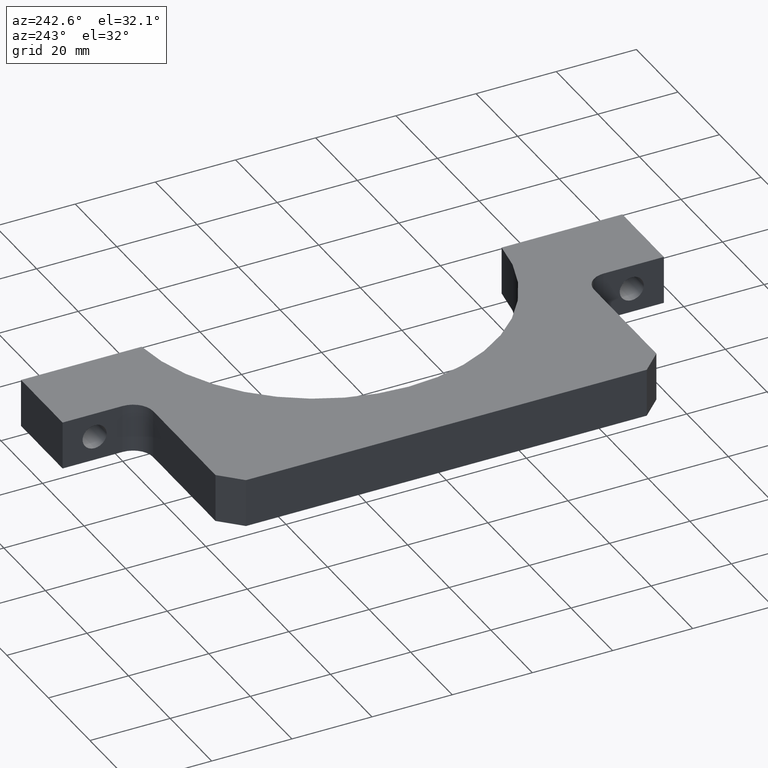
[diagram: clean part render]
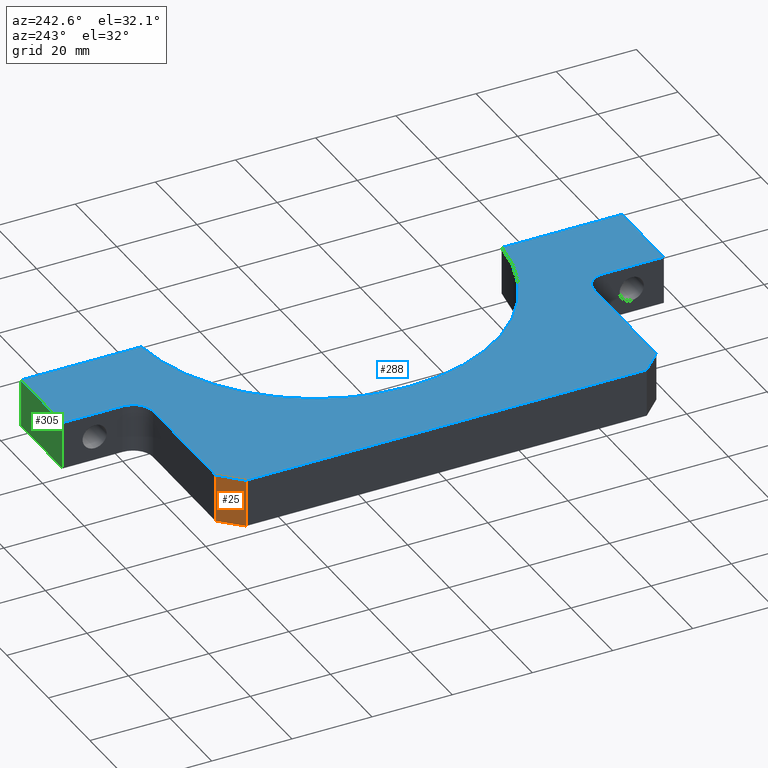
[diagram: same view with three faces highlighted in distinct colors, each labeled with its STEP entity id]
A machine part, auxiliary view with three faces highlighted in distinct colors.
Their STEP definitions:

[orange] entity #25 — the highlighted planar face has unit normal (0.7071, -0.7071, 0).
#7 = DIRECTION ( 'NONE',  ( 0.0000000000000000000, 0.0000000000000000000, -1.000000000000000000 ) ) ;
#16 = DIRECTION ( 'NONE',  ( 0.7071067811865455700, -0.7071067811865495700, 0.0000000000000000000 ) ) ;
#18 = CARTESIAN_POINT ( 'NONE',  ( 5.000000000000019500, 55.00000000000000700, 6.000000000000000000 ) ) ;
#25 = ADVANCED_FACE ( 'NONE', ( #326 ), #152, .F. ) ;
#40 = CARTESIAN_POINT ( 'NONE',  ( 5.000000000000022200, 55.00000000000000700, 6.000000000000000000 ) ) ;
#54 = CARTESIAN_POINT ( 'NONE',  ( 5.000000000000019500, 55.00000000000000700, -6.000000000000000000 ) ) ;
#61 = CARTESIAN_POINT ( 'NONE',  ( 0.0000000000000000000, 50.00000000000001400, 6.000000000000000000 ) ) ;
#129 = LINE ( 'NONE', #18, #148 ) ;
#148 = VECTOR ( 'NONE', #203, 1000.000000000000000 ) ;
#152 = PLANE ( 'NONE',  #434 ) ;
#174 = VECTOR ( 'NONE', #511, 1000.000000000000100 ) ;
#176 = LINE ( 'NONE', #517, #174 ) ;
#194 = VECTOR ( 'NONE', #298, 1000.000000000000100 ) ;
#196 = LINE ( 'NONE', #661, #194 ) ;
#203 = DIRECTION ( 'NONE',  ( 0.0000000000000000000, 0.0000000000000000000, 1.000000000000000000 ) ) ;
#252 = EDGE_CURVE ( 'NONE', #356, #386, #301, .T. ) ;
#295 = VECTOR ( 'NONE', #715, 1000.000000000000000 ) ;
#298 = DIRECTION ( 'NONE',  ( -0.7071067811865495700, -0.7071067811865455700, 0.0000000000000000000 ) ) ;
#301 = LINE ( 'NONE', #705, #295 ) ;
#326 = FACE_OUTER_BOUND ( 'NONE', #609, .T. ) ;
#356 = VERTEX_POINT ( 'NONE', #616 ) ;
#361 = ORIENTED_EDGE ( 'NONE', *, *, #536, .F. ) ;
#386 = VERTEX_POINT ( 'NONE', #500 ) ;
#395 = ORIENTED_EDGE ( 'NONE', *, *, #252, .F. ) ;
#434 = AXIS2_PLACEMENT_3D ( 'NONE', #61, #16, #7 ) ;
#453 = ORIENTED_EDGE ( 'NONE', *, *, #571, .F. ) ;
#500 = CARTESIAN_POINT ( 'NONE',  ( -6.938893903907230000E-015, 49.99999999999999300, -6.000000000000000000 ) ) ;
#511 = DIRECTION ( 'NONE',  ( 0.7071067811865495700, 0.7071067811865455700, -0.0000000000000000000 ) ) ;
#517 = CARTESIAN_POINT ( 'NONE',  ( 0.0000000000000000000, 50.00000000000001400, -6.000000000000000000 ) ) ;
#536 = EDGE_CURVE ( 'NONE', #643, #356, #196, .T. ) ;
#571 = EDGE_CURVE ( 'NONE', #386, #670, #176, .T. ) ;
#592 = ORIENTED_EDGE ( 'NONE', *, *, #684, .F. ) ;
#609 = EDGE_LOOP ( 'NONE', ( #361, #592, #453, #395 ) ) ;
#616 = CARTESIAN_POINT ( 'NONE',  ( -6.071532165918824800E-015, 49.99999999999999300, 6.000000000000000000 ) ) ;
#643 = VERTEX_POINT ( 'NONE', #40 ) ;
#661 = CARTESIAN_POINT ( 'NONE',  ( 6.500000000000172300, 56.50000000000014900, 6.000000000000000000 ) ) ;
#670 = VERTEX_POINT ( 'NONE', #54 ) ;
#684 = EDGE_CURVE ( 'NONE', #670, #643, #129, .T. ) ;
#705 = CARTESIAN_POINT ( 'NONE',  ( 0.0000000000000000000, 50.00000000000001400, 6.000000000000000000 ) ) ;
#715 = DIRECTION ( 'NONE',  ( 0.0000000000000000000, 0.0000000000000000000, -1.000000000000000000 ) ) ;

[blue] entity #288 — the highlighted planar face has unit normal (0, 0, 1).
#3 = CARTESIAN_POINT ( 'NONE',  ( 39.99999999999999300, -75.00000000000001400, 6.000000000000000000 ) ) ;
#4 = CARTESIAN_POINT ( 'NONE',  ( 60.00000000000000700, 44.89988864128730500, 6.000000000000000000 ) ) ;
#10 = CARTESIAN_POINT ( 'NONE',  ( 63.00000000000000000, 0.0000000000000000000, 6.000000000000000000 ) ) ;
#12 = CARTESIAN_POINT ( 'NONE',  ( 17.99999999999999600, 0.0000000000000000000, 6.000000000000000000 ) ) ;
#23 = CARTESIAN_POINT ( 'NONE',  ( 60.00000000000000000, 75.00000000000001400, 6.000000000000000000 ) ) ;
#32 = DIRECTION ( 'NONE',  ( -1.000000000000000000, -0.0000000000000000000, -0.0000000000000000000 ) ) ;
#40 = CARTESIAN_POINT ( 'NONE',  ( 5.000000000000022200, 55.00000000000000700, 6.000000000000000000 ) ) ;
#45 = CARTESIAN_POINT ( 'NONE',  ( 6.499999999999832100, -56.49999999999985100, 6.000000000000000000 ) ) ;
#48 = CARTESIAN_POINT ( 'NONE',  ( 34.99999999999999300, 55.00000000000000700, 6.000000000000000000 ) ) ;
#60 = DIRECTION ( 'NONE',  ( 2.305271838105247500E-016, 1.000000000000000000, 0.0000000000000000000 ) ) ;
#74 = DIRECTION ( 'NONE',  ( 1.000000000000000000, 0.0000000000000000000, 0.0000000000000000000 ) ) ;
#75 = CARTESIAN_POINT ( 'NONE',  ( 0.0000000000000000000, 55.00000000000000700, 6.000000000000000000 ) ) ;
#76 = DIRECTION ( 'NONE',  ( -0.0000000000000000000, -0.0000000000000000000, -1.000000000000000000 ) ) ;
#78 = CARTESIAN_POINT ( 'NONE',  ( 63.00000000000000000, 0.0000000000000000000, 6.000000000000000000 ) ) ;
#96 = CARTESIAN_POINT ( 'NONE',  ( 60.00000000000000000, -75.00000000000001400, 6.000000000000000000 ) ) ;
#100 = DIRECTION ( 'NONE',  ( 1.000000000000000000, 0.0000000000000000000, 0.0000000000000000000 ) ) ;
#109 = DIRECTION ( 'NONE',  ( 1.000000000000000000, 0.0000000000000000000, 0.0000000000000000000 ) ) ;
#112 = LINE ( 'NONE', #676, #113 ) ;
#113 = VECTOR ( 'NONE', #523, 1000.000000000000000 ) ;
#118 = LINE ( 'NONE', #75, #120 ) ;
#120 = VECTOR ( 'NONE', #32, 1000.000000000000000 ) ;
#124 = VERTEX_POINT ( 'NONE', #513 ) ;
#151 = CIRCLE ( 'NONE', #173, 45.00000000000001400 ) ;
#173 = AXIS2_PLACEMENT_3D ( 'NONE', #78, #76, #74 ) ;
#180 = CIRCLE ( 'NONE', #248, 4.999999999999997300 ) ;
#181 = VECTOR ( 'NONE', #632, 1000.000000000000100 ) ;
#183 = VECTOR ( 'NONE', #708, 1000.000000000000000 ) ;
#184 = LINE ( 'NONE', #45, #181 ) ;
#185 = CARTESIAN_POINT ( 'NONE',  ( 39.99999999999999300, -75.00000000000001400, 6.000000000000000000 ) ) ;
#186 = CIRCLE ( 'NONE', #255, 4.999999999999997300 ) ;
#194 = VECTOR ( 'NONE', #298, 1000.000000000000100 ) ;
#196 = LINE ( 'NONE', #661, #194 ) ;
#199 = DIRECTION ( 'NONE',  ( -0.0000000000000000000, -0.0000000000000000000, -1.000000000000000000 ) ) ;
#202 = VECTOR ( 'NONE', #680, 1000.000000000000000 ) ;
#205 = LINE ( 'NONE', #432, #183 ) ;
#213 = LINE ( 'NONE', #675, #202 ) ;
#217 = VECTOR ( 'NONE', #714, 1000.000000000000000 ) ;
#226 = LINE ( 'NONE', #23, #217 ) ;
#234 = VECTOR ( 'NONE', #60, 1000.000000000000000 ) ;
#238 = CIRCLE ( 'NONE', #315, 45.00000000000001400 ) ;
#240 = LINE ( 'NONE', #96, #234 ) ;
#242 = VECTOR ( 'NONE', #100, 1000.000000000000000 ) ;
#248 = AXIS2_PLACEMENT_3D ( 'NONE', #580, #570, #560 ) ;
#251 = EDGE_CURVE ( 'NONE', #475, #124, #299, .T. ) ;
#255 = AXIS2_PLACEMENT_3D ( 'NONE', #265, #623, #618 ) ;
#256 = LINE ( 'NONE', #185, #242 ) ;
#265 = CARTESIAN_POINT ( 'NONE',  ( 34.99999999999999300, -60.00000000000000700, 6.000000000000000000 ) ) ;
#268 = CARTESIAN_POINT ( 'NONE',  ( 4.999999999999999100, -55.00000000000000700, 6.000000000000000000 ) ) ;
#280 = VECTOR ( 'NONE', #506, 1000.000000000000000 ) ;
#288 = ADVANCED_FACE ( 'NONE', ( #292 ), #645, .T. ) ;
#292 = FACE_OUTER_BOUND ( 'NONE', #474, .T. ) ;
#297 = LINE ( 'NONE', #450, #280 ) ;
#298 = DIRECTION ( 'NONE',  ( -0.7071067811865495700, -0.7071067811865455700, 0.0000000000000000000 ) ) ;
#299 = LINE ( 'NONE', #664, #309 ) ;
#306 = CARTESIAN_POINT ( 'NONE',  ( 60.00000000000000000, 75.00000000000001400, 6.000000000000000000 ) ) ;
#309 = VECTOR ( 'NONE', #658, 1000.000000000000000 ) ;
#315 = AXIS2_PLACEMENT_3D ( 'NONE', #10, #199, #109 ) ;
#333 = VERTEX_POINT ( 'NONE', #622 ) ;
#347 = ORIENTED_EDGE ( 'NONE', *, *, #484, .T. ) ;
#356 = VERTEX_POINT ( 'NONE', #616 ) ;
#372 = ORIENTED_EDGE ( 'NONE', *, *, #550, .T. ) ;
#374 = VERTEX_POINT ( 'NONE', #595 ) ;
#375 = AXIS2_PLACEMENT_3D ( 'NONE', #700, #641, #637 ) ;
#376 = ORIENTED_EDGE ( 'NONE', *, *, #624, .T. ) ;
#397 = ORIENTED_EDGE ( 'NONE', *, *, #536, .T. ) ;
#403 = EDGE_CURVE ( 'NONE', #430, #677, #297, .T. ) ;
#425 = ORIENTED_EDGE ( 'NONE', *, *, #553, .T. ) ;
#430 = VERTEX_POINT ( 'NONE', #490 ) ;
#432 = CARTESIAN_POINT ( 'NONE',  ( 39.99999999999999300, 55.00000000000000700, 6.000000000000000000 ) ) ;
#437 = CARTESIAN_POINT ( 'NONE',  ( 39.99999999999999300, 75.00000000000001400, 6.000000000000000000 ) ) ;
#448 = ORIENTED_EDGE ( 'NONE', *, *, #498, .T. ) ;
#450 = CARTESIAN_POINT ( 'NONE',  ( 39.99999999999999300, -55.00000000000000700, 6.000000000000000000 ) ) ;
#466 = VERTEX_POINT ( 'NONE', #437 ) ;
#474 = EDGE_LOOP ( 'NONE', ( #533, #425, #499, #640, #649, #347, #448, #561, #376, #577, #668, #372, #583, #488, #397 ) ) ;
#475 = VERTEX_POINT ( 'NONE', #268 ) ;
#484 = EDGE_CURVE ( 'NONE', #677, #374, #256, .T. ) ;
#488 = ORIENTED_EDGE ( 'NONE', *, *, #689, .T. ) ;
#490 = CARTESIAN_POINT ( 'NONE',  ( 39.99999999999999300, -60.00000000000000700, 6.000000000000000000 ) ) ;
#498 = EDGE_CURVE ( 'NONE', #374, #720, #240, .T. ) ;
#499 = ORIENTED_EDGE ( 'NONE', *, *, #251, .T. ) ;
#502 = EDGE_CURVE ( 'NONE', #720, #663, #238, .T. ) ;
#506 = DIRECTION ( 'NONE',  ( 0.0000000000000000000, -1.000000000000000000, 0.0000000000000000000 ) ) ;
#513 = CARTESIAN_POINT ( 'NONE',  ( 34.99999999999999300, -55.00000000000000700, 6.000000000000000000 ) ) ;
#519 = EDGE_CURVE ( 'NONE', #662, #697, #226, .T. ) ;
#523 = DIRECTION ( 'NONE',  ( -0.0000000000000000000, -1.000000000000000000, -0.0000000000000000000 ) ) ;
#531 = EDGE_CURVE ( 'NONE', #697, #466, #213, .T. ) ;
#533 = ORIENTED_EDGE ( 'NONE', *, *, #721, .T. ) ;
#536 = EDGE_CURVE ( 'NONE', #643, #356, #196, .T. ) ;
#550 = EDGE_CURVE ( 'NONE', #466, #333, #205, .T. ) ;
#553 = EDGE_CURVE ( 'NONE', #698, #475, #184, .T. ) ;
#560 = DIRECTION ( 'NONE',  ( 1.000000000000000000, 0.0000000000000000000, 0.0000000000000000000 ) ) ;
#561 = ORIENTED_EDGE ( 'NONE', *, *, #502, .T. ) ;
#563 = EDGE_CURVE ( 'NONE', #124, #430, #186, .T. ) ;
#567 = EDGE_CURVE ( 'NONE', #333, #644, #180, .T. ) ;
#570 = DIRECTION ( 'NONE',  ( -0.0000000000000000000, -0.0000000000000000000, -1.000000000000000000 ) ) ;
#572 = CARTESIAN_POINT ( 'NONE',  ( 60.00000000000000700, -44.89988864128729800, 6.000000000000000000 ) ) ;
#577 = ORIENTED_EDGE ( 'NONE', *, *, #519, .T. ) ;
#580 = CARTESIAN_POINT ( 'NONE',  ( 34.99999999999999300, 60.00000000000000700, 6.000000000000000000 ) ) ;
#583 = ORIENTED_EDGE ( 'NONE', *, *, #567, .T. ) ;
#595 = CARTESIAN_POINT ( 'NONE',  ( 60.00000000000000000, -75.00000000000001400, 6.000000000000000000 ) ) ;
#616 = CARTESIAN_POINT ( 'NONE',  ( -6.071532165918824800E-015, 49.99999999999999300, 6.000000000000000000 ) ) ;
#618 = DIRECTION ( 'NONE',  ( 1.000000000000000000, 0.0000000000000000000, 0.0000000000000000000 ) ) ;
#622 = CARTESIAN_POINT ( 'NONE',  ( 39.99999999999999300, 60.00000000000000700, 6.000000000000000000 ) ) ;
#623 = DIRECTION ( 'NONE',  ( -0.0000000000000000000, -0.0000000000000000000, -1.000000000000000000 ) ) ;
#624 = EDGE_CURVE ( 'NONE', #663, #662, #151, .T. ) ;
#632 = DIRECTION ( 'NONE',  ( 0.7071067811865455700, -0.7071067811865495700, -0.0000000000000000000 ) ) ;
#637 = DIRECTION ( 'NONE',  ( 1.000000000000000000, 0.0000000000000000000, -0.0000000000000000000 ) ) ;
#640 = ORIENTED_EDGE ( 'NONE', *, *, #563, .T. ) ;
#641 = DIRECTION ( 'NONE',  ( 0.0000000000000000000, 0.0000000000000000000, 1.000000000000000000 ) ) ;
#643 = VERTEX_POINT ( 'NONE', #40 ) ;
#644 = VERTEX_POINT ( 'NONE', #48 ) ;
#645 = PLANE ( 'NONE',  #375 ) ;
#649 = ORIENTED_EDGE ( 'NONE', *, *, #403, .T. ) ;
#658 = DIRECTION ( 'NONE',  ( 1.000000000000000000, 0.0000000000000000000, 0.0000000000000000000 ) ) ;
#661 = CARTESIAN_POINT ( 'NONE',  ( 6.500000000000172300, 56.50000000000014900, 6.000000000000000000 ) ) ;
#662 = VERTEX_POINT ( 'NONE', #4 ) ;
#663 = VERTEX_POINT ( 'NONE', #12 ) ;
#664 = CARTESIAN_POINT ( 'NONE',  ( 0.0000000000000000000, -55.00000000000000700, 6.000000000000000000 ) ) ;
#668 = ORIENTED_EDGE ( 'NONE', *, *, #531, .T. ) ;
#675 = CARTESIAN_POINT ( 'NONE',  ( 39.99999999999999300, 75.00000000000001400, 6.000000000000000000 ) ) ;
#676 = CARTESIAN_POINT ( 'NONE',  ( 0.0000000000000000000, -55.00000000000000700, 6.000000000000000000 ) ) ;
#677 = VERTEX_POINT ( 'NONE', #3 ) ;
#680 = DIRECTION ( 'NONE',  ( -1.000000000000000000, -0.0000000000000000000, -0.0000000000000000000 ) ) ;
#683 = CARTESIAN_POINT ( 'NONE',  ( 4.336808689942017700E-016, -49.99999999999997900, 6.000000000000000000 ) ) ;
#689 = EDGE_CURVE ( 'NONE', #644, #643, #118, .T. ) ;
#697 = VERTEX_POINT ( 'NONE', #306 ) ;
#698 = VERTEX_POINT ( 'NONE', #683 ) ;
#700 = CARTESIAN_POINT ( 'NONE',  ( 63.00000000000000000, 0.0000000000000000000, 6.000000000000000000 ) ) ;
#708 = DIRECTION ( 'NONE',  ( -0.0000000000000000000, -1.000000000000000000, -0.0000000000000000000 ) ) ;
#714 = DIRECTION ( 'NONE',  ( -2.305271838105247500E-016, 1.000000000000000000, -0.0000000000000000000 ) ) ;
#720 = VERTEX_POINT ( 'NONE', #572 ) ;
#721 = EDGE_CURVE ( 'NONE', #356, #698, #112, .T. ) ;

[green] entity #305 — the highlighted planar face has unit normal (0, -1, 0).
#17 = DIRECTION ( 'NONE',  ( -0.0000000000000000000, -0.0000000000000000000, -1.000000000000000000 ) ) ;
#39 = CARTESIAN_POINT ( 'NONE',  ( 60.00000000000000000, 75.00000000000001400, 6.000000000000000000 ) ) ;
#42 = CARTESIAN_POINT ( 'NONE',  ( 60.00000000000000000, 75.00000000000001400, -6.000000000000000000 ) ) ;
#123 = ORIENTED_EDGE ( 'NONE', *, *, #531, .F. ) ;
#187 = DIRECTION ( 'NONE',  ( -1.000000000000000000, -0.0000000000000000000, -0.0000000000000000000 ) ) ;
#202 = VECTOR ( 'NONE', #680, 1000.000000000000000 ) ;
#207 = LINE ( 'NONE', #584, #209 ) ;
#209 = VECTOR ( 'NONE', #711, 1000.000000000000000 ) ;
#213 = LINE ( 'NONE', #675, #202 ) ;
#216 = LINE ( 'NONE', #650, #222 ) ;
#222 = VECTOR ( 'NONE', #187, 1000.000000000000000 ) ;
#224 = VECTOR ( 'NONE', #17, 1000.000000000000000 ) ;
#229 = LINE ( 'NONE', #39, #224 ) ;
#293 = FACE_OUTER_BOUND ( 'NONE', #526, .T. ) ;
#305 = ADVANCED_FACE ( 'NONE', ( #293 ), #695, .F. ) ;
#306 = CARTESIAN_POINT ( 'NONE',  ( 60.00000000000000000, 75.00000000000001400, 6.000000000000000000 ) ) ;
#359 = AXIS2_PLACEMENT_3D ( 'NONE', #652, #606, #605 ) ;
#437 = CARTESIAN_POINT ( 'NONE',  ( 39.99999999999999300, 75.00000000000001400, 6.000000000000000000 ) ) ;
#466 = VERTEX_POINT ( 'NONE', #437 ) ;
#482 = ORIENTED_EDGE ( 'NONE', *, *, #512, .T. ) ;
#512 = EDGE_CURVE ( 'NONE', #697, #639, #229, .T. ) ;
#521 = EDGE_CURVE ( 'NONE', #639, #717, #216, .T. ) ;
#526 = EDGE_LOOP ( 'NONE', ( #654, #682, #123, #482 ) ) ;
#529 = EDGE_CURVE ( 'NONE', #466, #717, #207, .T. ) ;
#531 = EDGE_CURVE ( 'NONE', #697, #466, #213, .T. ) ;
#584 = CARTESIAN_POINT ( 'NONE',  ( 39.99999999999999300, 75.00000000000001400, 6.000000000000000000 ) ) ;
#605 = DIRECTION ( 'NONE',  ( 0.0000000000000000000, -0.0000000000000000000, -1.000000000000000000 ) ) ;
#606 = DIRECTION ( 'NONE',  ( 0.0000000000000000000, -1.000000000000000000, 0.0000000000000000000 ) ) ;
#629 = CARTESIAN_POINT ( 'NONE',  ( 39.99999999999999300, 75.00000000000001400, -6.000000000000000000 ) ) ;
#639 = VERTEX_POINT ( 'NONE', #42 ) ;
#650 = CARTESIAN_POINT ( 'NONE',  ( 39.99999999999999300, 75.00000000000001400, -6.000000000000000000 ) ) ;
#652 = CARTESIAN_POINT ( 'NONE',  ( 39.99999999999999300, 75.00000000000001400, 6.000000000000000000 ) ) ;
#654 = ORIENTED_EDGE ( 'NONE', *, *, #521, .T. ) ;
#675 = CARTESIAN_POINT ( 'NONE',  ( 39.99999999999999300, 75.00000000000001400, 6.000000000000000000 ) ) ;
#680 = DIRECTION ( 'NONE',  ( -1.000000000000000000, -0.0000000000000000000, -0.0000000000000000000 ) ) ;
#682 = ORIENTED_EDGE ( 'NONE', *, *, #529, .F. ) ;
#695 = PLANE ( 'NONE',  #359 ) ;
#697 = VERTEX_POINT ( 'NONE', #306 ) ;
#711 = DIRECTION ( 'NONE',  ( -0.0000000000000000000, -0.0000000000000000000, -1.000000000000000000 ) ) ;
#717 = VERTEX_POINT ( 'NONE', #629 ) ;